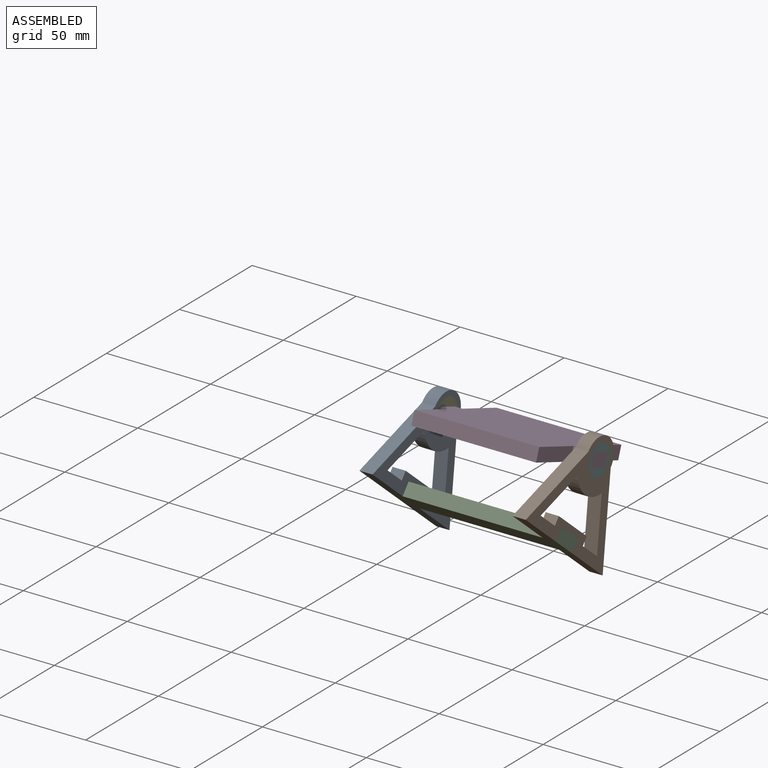
[diagram: assembled view]
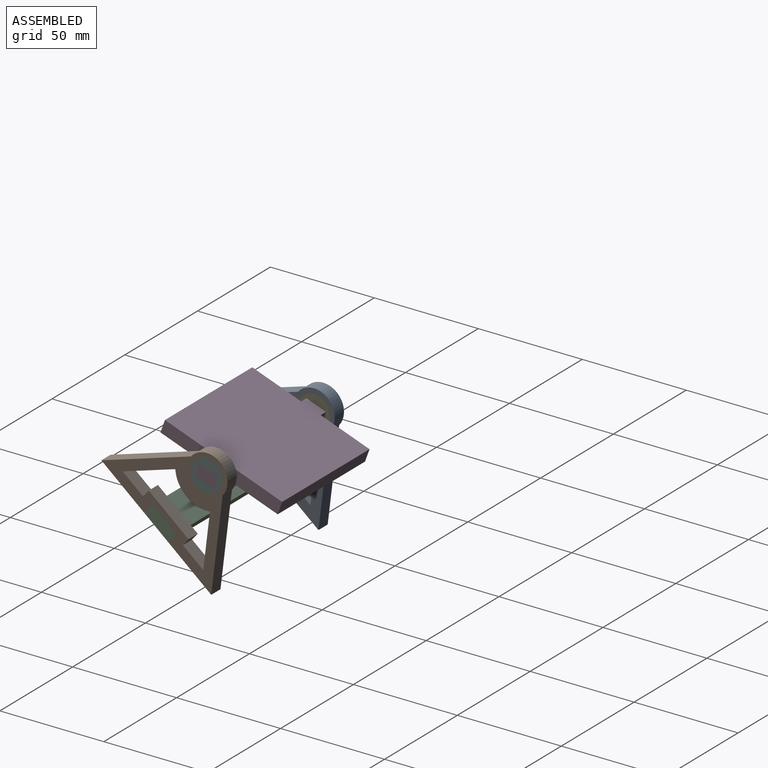
[diagram: assembled view, second angle]
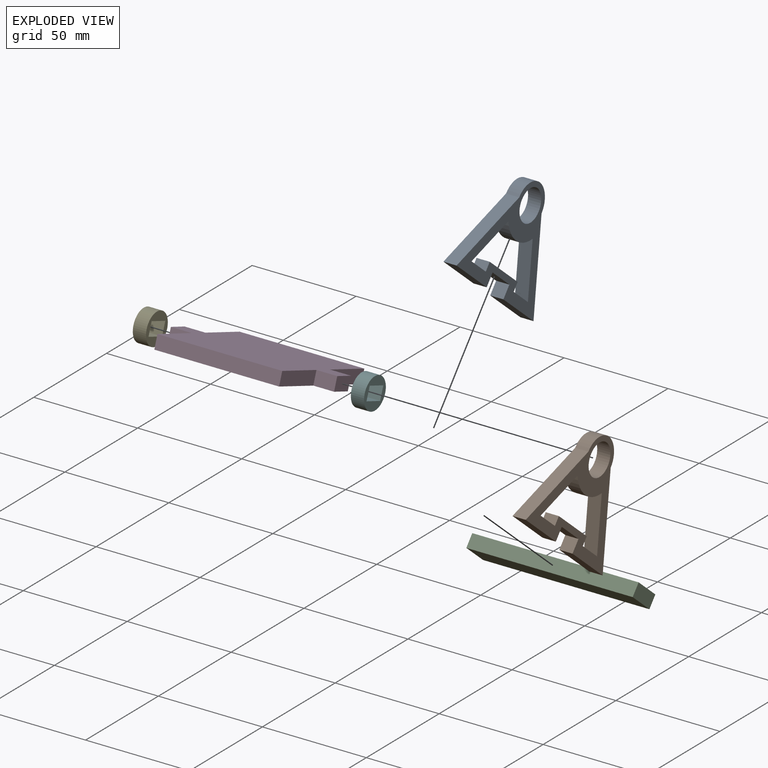
[diagram: exploded view]
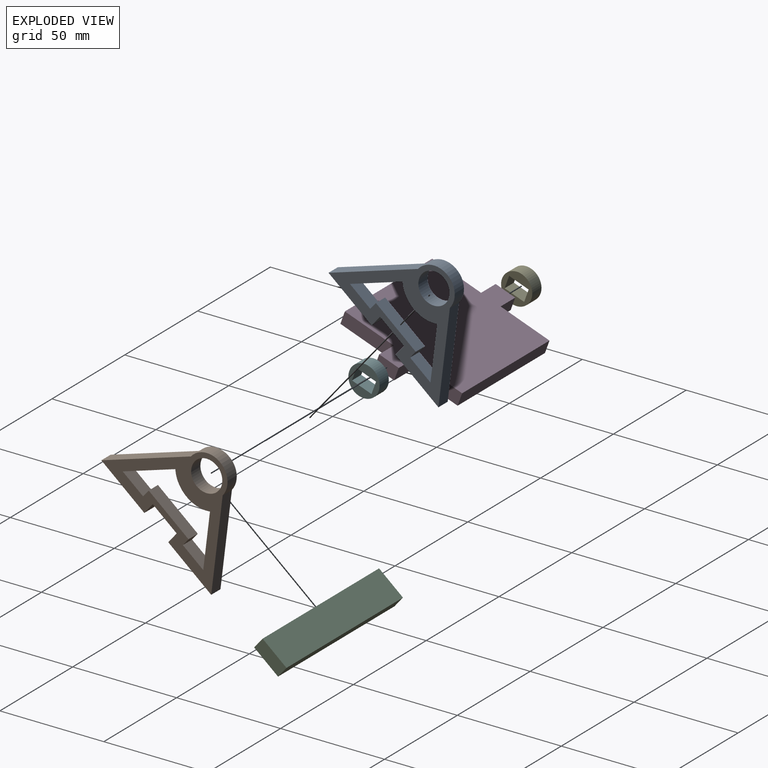
[diagram: exploded view, second angle]
ASSEMBLY  parts=6 mates=8
PART A: 19 faces, bbox 69x47.8x6.4 mm
  f0: plane 22.2x14.4mm, normal (0.84,-0.54,0), area 168mm2, adj f1,f16,f17,f18
  f1: cylinder r=15.16mm len=21.77mm, axis (0,0,-1), area 154.2mm2, adj f0,f2,f17,f18
  f2: plane 22.2x14.4mm, normal (-0.84,-0.54,0), area 168mm2, adj f1,f3,f17,f18
  f3: plane 12.78x6.35mm, normal (0,1,0), area 81.2mm2, adj f2,f4,f17,f18
  f4: plane 6.35x4.24mm, normal (1,0,0), area 26.9mm2, adj f3,f5,f17,f18
  f5: plane 25x6.35mm, normal (0,1,0), area 158.8mm2, adj f4,f6,f17,f18
  f6: plane 6.35x4.24mm, normal (-1,0,0), area 26.9mm2, adj f5,f16,f17,f18
  f7: cylinder r=10mm len=20mm, axis (0,0,-1), area 199.5mm2, adj f8,f14,f17,f18
  f8: plane 37.76x24.49mm, normal (-0.84,0.54,0), area 285.8mm2, adj f7,f9,f17,f18
  f9: plane 26.99x6.35mm, normal (0,-1,0), area 171.4mm2, adj f8,f10,f17,f18
  f10: plane 6.35x6.35mm, normal (1,0,0), area 40.3mm2, adj f9,f11,f17,f18
  f11: plane 15x6.35mm, normal (0,-1,0), area 95.2mm2, adj f10,f12,f17,f18
  f12: plane 6.35x6.35mm, normal (-1,0,0), area 40.3mm2, adj f11,f13,f17,f18
  f13: plane 26.99x6.35mm, normal (0,-1,0), area 171.4mm2, adj f12,f14,f17,f18
  f14: plane 37.76x24.49mm, normal (0.84,0.54,0), area 285.8mm2, adj f7,f13,f17,f18
  f15: cylinder r=7.5mm len=15mm, axis (0,0,-1), area 299.2mm2, adj f17,f18
  f16: plane 12.78x6.35mm, normal (0,1,0), area 81.2mm2, adj f0,f6,f17,f18
  f17: plane 68.97x47.76mm, normal (0,0,1), area 936.8mm2, adj f0,f1,f2,f3,f4,f5,f6,f7
  f18: plane 68.97x47.76mm, normal (0,0,-1), area 936.8mm2, adj f0,f1,f2,f3,f4,f5,f6,f7
PART B: same geometry as A
PART C: 6 faces, bbox 15x80x6.4 mm
  f0: plane 15x6.35mm, normal (0,1,0), area 95.2mm2, adj f1,f3,f4,f5
  f1: plane 80x6.35mm, normal (-1,0,0), area 508mm2, adj f0,f2,f4,f5
  f2: plane 15x6.35mm, normal (0,-1,0), area 95.2mm2, adj f1,f3,f4,f5
  f3: plane 80x6.35mm, normal (1,0,0), area 508mm2, adj f0,f2,f4,f5
  f4: plane 80x15mm, normal (0,0,1), area 1200mm2, adj f0,f1,f2,f3
  f5: plane 80x15mm, normal (0,0,-1), area 1200mm2, adj f0,f1,f2,f3
PART D: 14 faces, bbox 80x60x6.4 mm
  f0: plane 10x6.35mm, normal (0,-1,0), area 63.5mm2, adj f1,f11,f12,f13
  f1: plane 25x6.35mm, normal (-1,0,0), area 158.7mm2, adj f0,f2,f12,f13
  f2: plane 60x6.35mm, normal (0,-1,0), area 381mm2, adj f1,f3,f12,f13
  f3: plane 25x6.35mm, normal (1,0,0), area 158.7mm2, adj f2,f4,f12,f13
  f4: plane 10x6.35mm, normal (0,-1,0), area 63.5mm2, adj f3,f5,f12,f13
  f5: plane 10x6.35mm, normal (1,0,0), area 63.5mm2, adj f4,f6,f12,f13
  f6: plane 10x6.35mm, normal (0,1,0), area 63.5mm2, adj f5,f7,f12,f13
  f7: plane 25x6.35mm, normal (1,0,0), area 158.7mm2, adj f6,f8,f12,f13
  f8: plane 60x6.35mm, normal (0,1,0), area 381mm2, adj f7,f9,f12,f13
  f9: plane 25x6.35mm, normal (-1,0,0), area 158.7mm2, adj f8,f10,f12,f13
  f10: plane 10x6.35mm, normal (0,1,0), area 63.5mm2, adj f9,f11,f12,f13
  f11: plane 10x6.35mm, normal (-1,0,0), area 63.5mm2, adj f0,f10,f12,f13
  f12: plane 80x60mm, normal (0,0,1), area 3800mm2, adj f0,f1,f2,f3,f4,f5,f6,f7
  f13: plane 80x60mm, normal (0,0,-1), area 3800mm2, adj f0,f1,f2,f3,f4,f5,f6,f7
PART E: 7 faces, bbox 15x15x6.4 mm
  f0: plane 6.35x6.35mm, normal (1,0,0), area 40.3mm2, adj f1,f3,f5,f6
  f1: plane 10x6.35mm, normal (0,-1,0), area 63.5mm2, adj f0,f2,f5,f6
  f2: plane 6.35x6.35mm, normal (-1,0,0), area 40.3mm2, adj f1,f3,f5,f6
  f3: plane 10x6.35mm, normal (0,1,0), area 63.5mm2, adj f0,f2,f5,f6
  f4: cylinder r=7.5mm len=15mm, axis (0,0,-1), area 299.2mm2, adj f5,f6
  f5: plane 15x15mm, normal (0,0,1), area 113.2mm2, adj f0,f1,f2,f3,f4
  f6: plane 15x15mm, normal (0,0,-1), area 113.2mm2, adj f0,f1,f2,f3,f4
PART F: same geometry as E
PLACE A rot(axis=(0.39,0.83,0.39),100.3deg) t=(-65.59,-10.41,34.58)mm
PLACE B rot(axis=(0.39,-0.83,-0.39),100.3deg) t=(14.41,-10.41,34.58)mm
PLACE C rot(axis=(-0.32,-0.32,-0.89),96.7deg) t=(-25.59,-34.68,5.66)mm
PLACE D rot(axis=(-1,0,0),20deg) t=(-25.59,-11.5,31.6)mm
PLACE E rot(axis=(-0.63,-0.44,0.63),132.1deg) t=(-59.24,-10.41,34.58)mm
PLACE F rot(axis=(-0.63,0.44,-0.63),132.1deg) t=(8.06,-10.41,34.58)mm
MATE planar C.f1 <-> B.f10  axis (0,0.77,-0.64) through (-25.59,-26.89,3.27)mm
MATE slider E.f4 <-> D.f11  axis (-1,0,0) through (-65.59,-10.41,34.58)mm
MATE revolute B.f1 <-> D.f5  axis (1,0,0) through (14.41,-10.41,34.58)mm
MATE planar B.f11 <-> C.f4  axis (0,-0.64,-0.77) through (11.24,-30.6,10.53)mm
MATE planar A.f11 <-> C.f4  axis (0,-0.64,-0.77) through (-62.41,-30.6,10.53)mm
MATE slider F.f4 <-> D.f5  axis (1,0,0) through (14.41,-10.41,34.58)mm
MATE planar C.f0 <-> B.f18  axis (1,0,0) through (14.41,-32.64,8.09)mm
MATE revolute A.f1 <-> D.f11  axis (-1,0,0) through (-65.59,-10.41,34.58)mm
